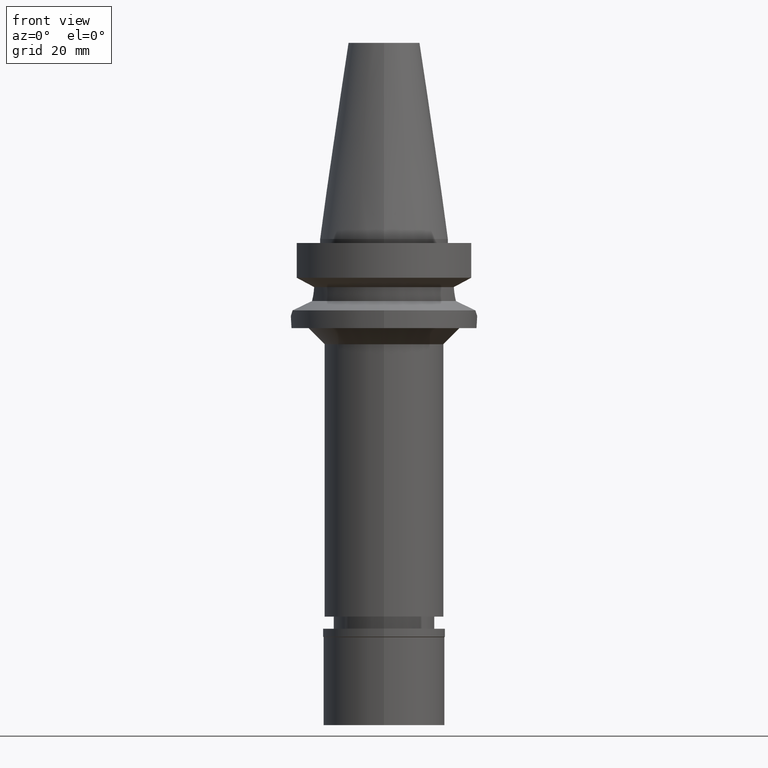
[diagram: clean part render]
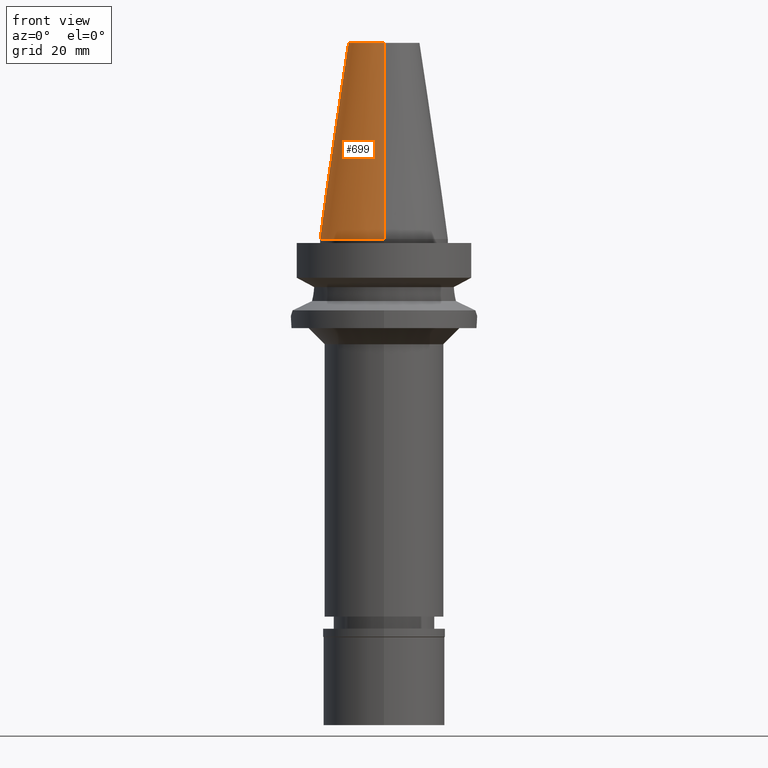
[diagram: same view with one face highlighted and labeled with its STEP entity id]
A machine part, front view. The second image highlights one B-rep face of the part: STEP entity #699.
In plain terms, the highlighted conical surface has half-angle 8.297 deg.
Its self-contained STEP definition (entity closure, byte-faithful):
#157 = EDGE_CURVE ( 'NONE', #2212, #173, #895, .T. ) ;
#168 = EDGE_CURVE ( 'NONE', #840, #173, #2271, .T. ) ;
#173 = VERTEX_POINT ( 'NONE', #945 ) ;
#335 = LINE ( 'NONE', #1056, #1909 ) ;
#344 = VERTEX_POINT ( 'NONE', #1723 ) ;
#501 = DIRECTION ( 'NONE',  ( 0.0000000000000000000, 0.1443043893539925626, -0.9895333461855498891 ) ) ;
#560 = CONICAL_SURFACE ( 'NONE', #1762, 12.34589586639000025, 0.1448099680379422438 ) ;
#604 = VECTOR ( 'NONE', #501, 1000.000000000000114 ) ;
#632 = DIRECTION ( 'NONE',  ( 0.0000000000000000000, 0.0000000000000000000, -1.000000000000000000 ) ) ;
#699 = ADVANCED_FACE ( 'NONE', ( #812 ), #560, .T. ) ;
#812 = FACE_OUTER_BOUND ( 'NONE', #2833, .T. ) ;
#840 = VERTEX_POINT ( 'NONE', #1439 ) ;
#843 = AXIS2_PLACEMENT_3D ( 'NONE', #2504, #1165, #1818 ) ;
#895 = CIRCLE ( 'NONE', #843, 15.87500000000000000 ) ;
#929 = CARTESIAN_POINT ( 'NONE',  ( 0.0000000000000000000, 8.816791732783000768, 48.39999999999999858 ) ) ;
#945 = CARTESIAN_POINT ( 'NONE',  ( 0.0000000000000000000, 15.87500000000000000, -1.776356839399999796E-13 ) ) ;
#1005 = ORIENTED_EDGE ( 'NONE', *, *, #2416, .T. ) ;
#1056 = CARTESIAN_POINT ( 'NONE',  ( 0.0000000000000000000, -8.816791732783000768, 48.39999999999999858 ) ) ;
#1135 = EDGE_CURVE ( 'NONE', #344, #2212, #335, .T. ) ;
#1165 = DIRECTION ( 'NONE',  ( 0.0000000000000000000, 0.0000000000000000000, -1.000000000000000000 ) ) ;
#1278 = CARTESIAN_POINT ( 'NONE',  ( 0.0000000000000000000, 1.521011324540999938E-14, 24.19999999999999929 ) ) ;
#1310 = DIRECTION ( 'NONE',  ( 0.0000000000000000000, -1.000000000000000000, 0.0000000000000000000 ) ) ;
#1439 = CARTESIAN_POINT ( 'NONE',  ( 0.0000000000000000000, 8.816791732783000768, 48.39999999999999858 ) ) ;
#1723 = CARTESIAN_POINT ( 'NONE',  ( 0.0000000000000000000, -8.816791732783000768, 48.39999999999999858 ) ) ;
#1762 = AXIS2_PLACEMENT_3D ( 'NONE', #1278, #632, #1310 ) ;
#1818 = DIRECTION ( 'NONE',  ( 0.0000000000000000000, -1.000000000000000000, 0.0000000000000000000 ) ) ;
#1909 = VECTOR ( 'NONE', #1935, 1000.000000000000114 ) ;
#1935 = DIRECTION ( 'NONE',  ( 0.0000000000000000000, -0.1443043893539925626, -0.9895333461855498891 ) ) ;
#1973 = CARTESIAN_POINT ( 'NONE',  ( 0.0000000000000000000, -15.87500000000000000, -1.776356839399999796E-13 ) ) ;
#2029 = DIRECTION ( 'NONE',  ( 0.0000000000000000000, -1.000000000000000000, 0.0000000000000000000 ) ) ;
#2145 = AXIS2_PLACEMENT_3D ( 'NONE', #2496, #2471, #2029 ) ;
#2170 = ORIENTED_EDGE ( 'NONE', *, *, #157, .F. ) ;
#2186 = ORIENTED_EDGE ( 'NONE', *, *, #168, .T. ) ;
#2212 = VERTEX_POINT ( 'NONE', #1973 ) ;
#2271 = LINE ( 'NONE', #929, #604 ) ;
#2416 = EDGE_CURVE ( 'NONE', #344, #840, #2514, .T. ) ;
#2471 = DIRECTION ( 'NONE',  ( 0.0000000000000000000, 0.0000000000000000000, -1.000000000000000000 ) ) ;
#2496 = CARTESIAN_POINT ( 'NONE',  ( 0.0000000000000000000, 1.521011324540999938E-14, 48.39999999999999858 ) ) ;
#2504 = CARTESIAN_POINT ( 'NONE',  ( 0.0000000000000000000, 1.521011324540999938E-14, -3.694822225953000089E-13 ) ) ;
#2514 = CIRCLE ( 'NONE', #2145, 8.816791732783000768 ) ;
#2833 = EDGE_LOOP ( 'NONE', ( #2170, #2860, #1005, #2186 ) ) ;
#2860 = ORIENTED_EDGE ( 'NONE', *, *, #1135, .F. ) ;